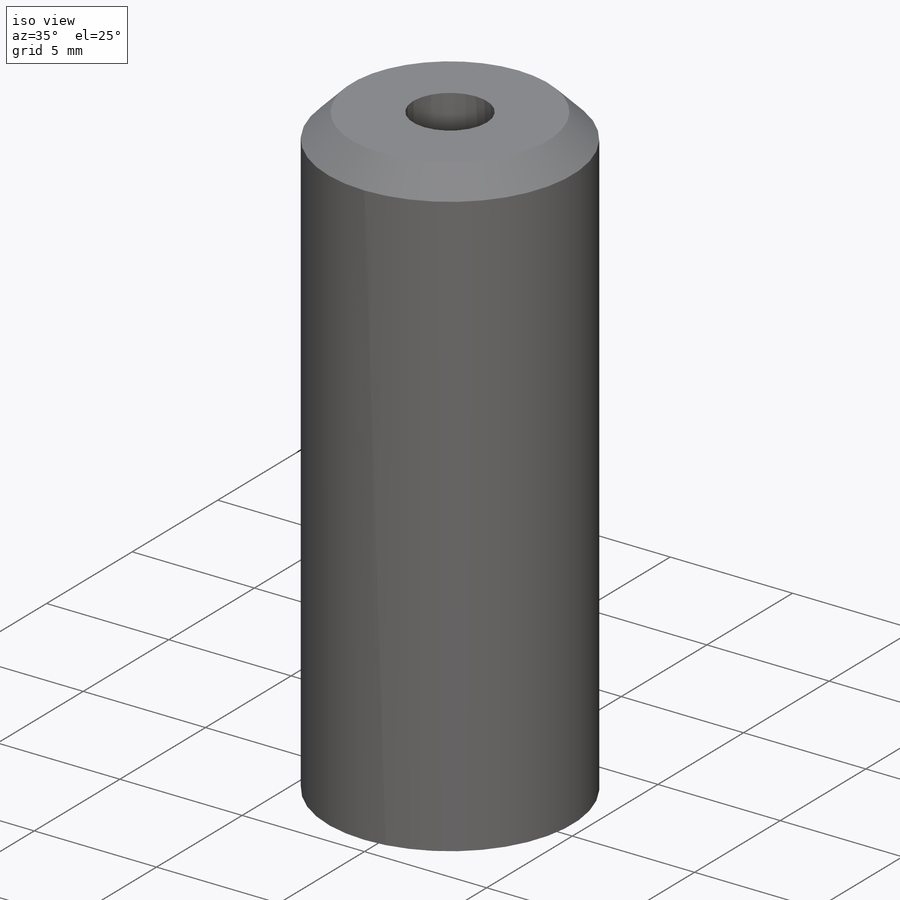
[diagram: iso view]
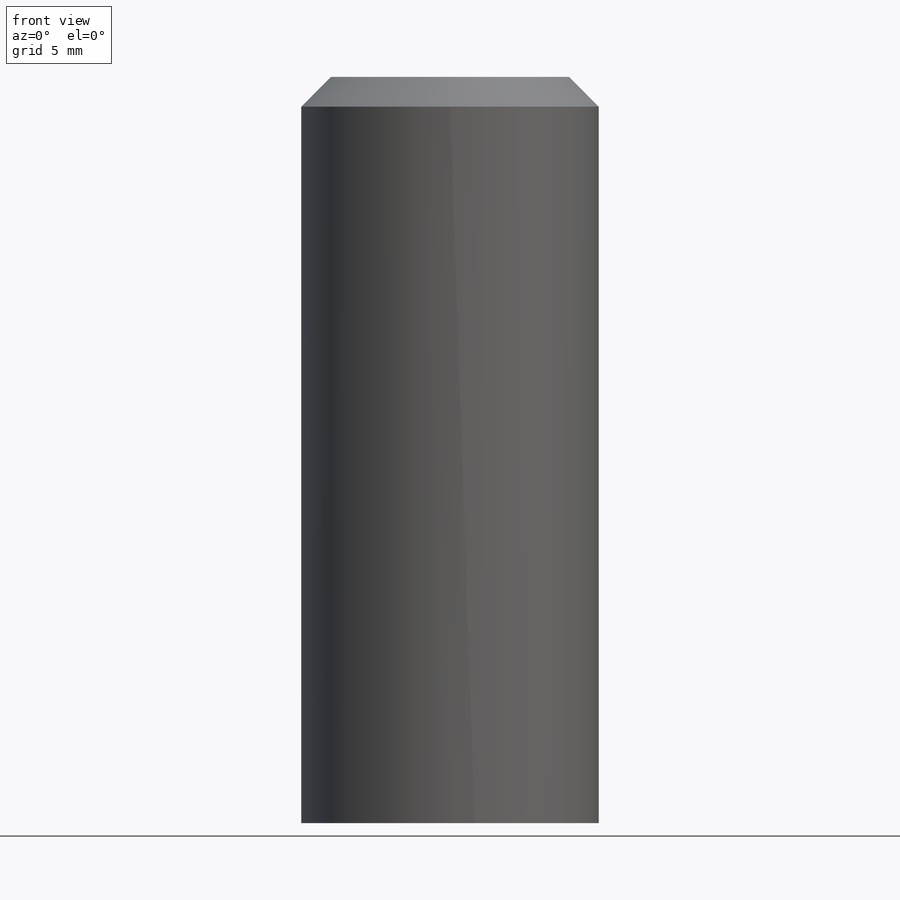
[diagram: front view]
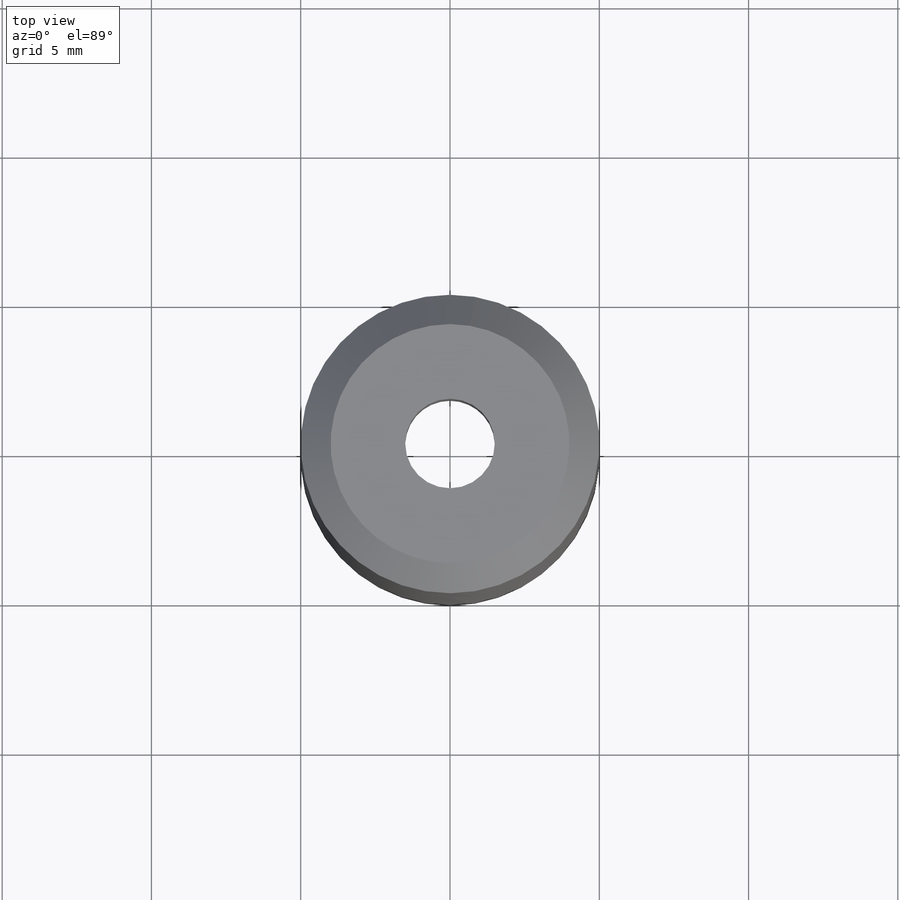
[diagram: top view]
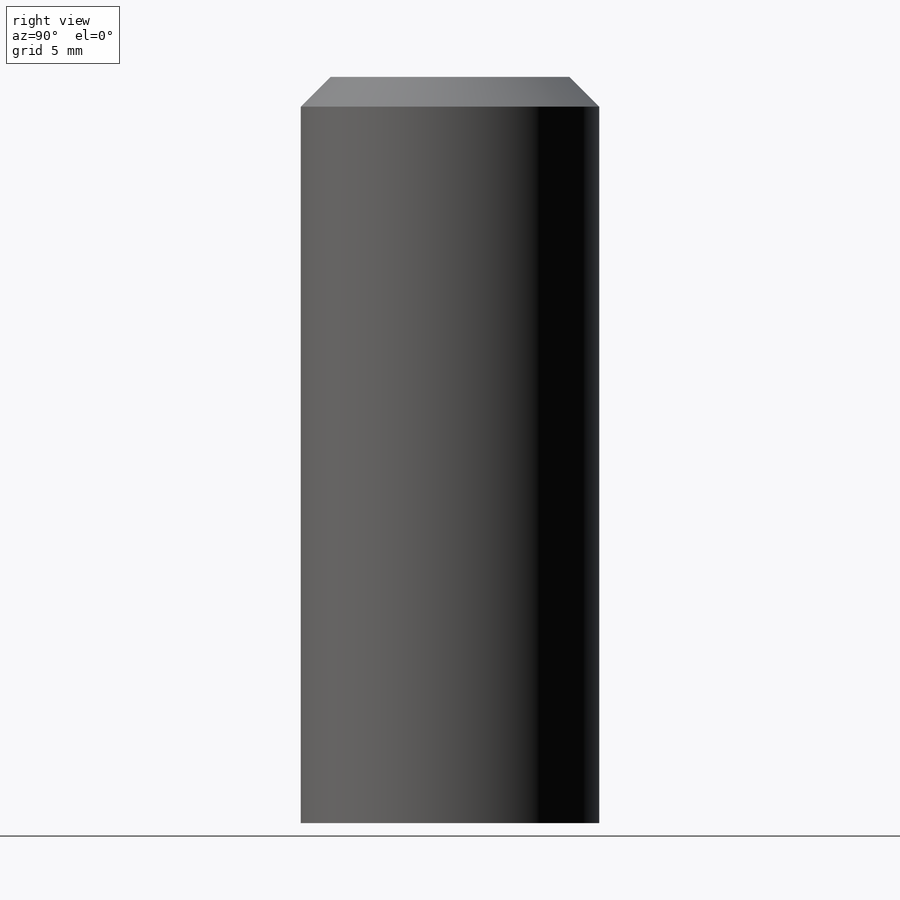
[diagram: right view]
SOLIDWORKS PART (.sldprt)
format: sldprt  version: not decoded by parser v0  size: 203,776 bytes
history: native  units: mm
features: sketch x5, thread x2, material x1, revolve x1, hole x1, cut_extrude x1 (+11 scaffold rows collapsed)
feature tree (22):
  scaffold x11  (default folders/planes/origin — collapsed)
  material  "Material <not specified>"
  sketch  "Sketch2"  dims[c1.D1=~5.617584mm c2.D1=45.0deg c2.D2=5.0mm c2.D3=25.0mm c2.D4=4.0mm]
  revolve  "Revolve1"  [1 undecoded]
  thread  "Cosmetic Thread8"  Diameter=10mm  [1 undecoded]
  hole  "Ø6.0 (6) Diameter Hole1"  Diameter=6mm Depth=20mm
  sketch  "Sketch5"
  sketch  "Sketch4"  dims[hole-wizard template sketch: 47 standard entries collapsed; hole parameters kept: c15.Hole Depth=20.0mm c15.D3=~14.816244mm c15.Drill Angle=118.0deg]
  thread  "Cosmetic Thread6"  Diameter=10mm  [1 undecoded]
  sketch  "Sketch6"  dims[D1=3.0mm]
  cut_extrude  "Cut-Extrude1"  [1 undecoded]
  sketch  "Sketch7"  dims[D1=6.0mm]
decode coverage: 7 of 10 modeling features carry decoded parameters
note: ~ marks probable driven/reference dimensions
note: 4 parameter values undecoded
note: suppression state not decoded; provenance and decode notes live in map.json
